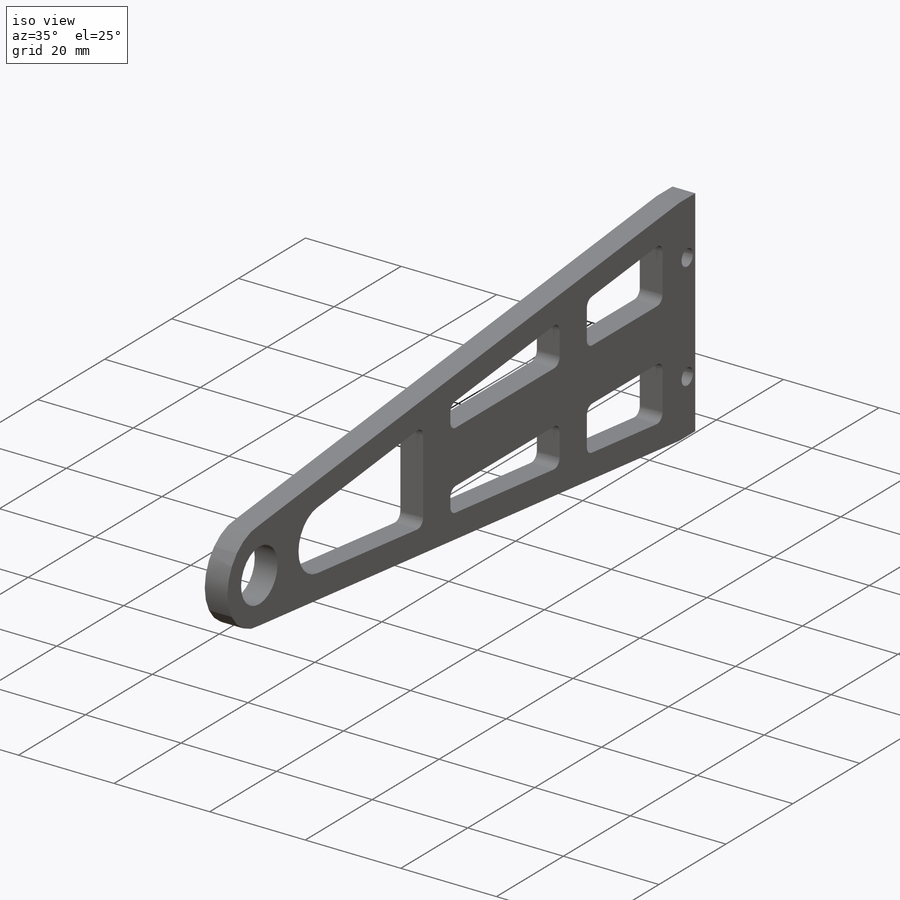
[diagram: iso view]
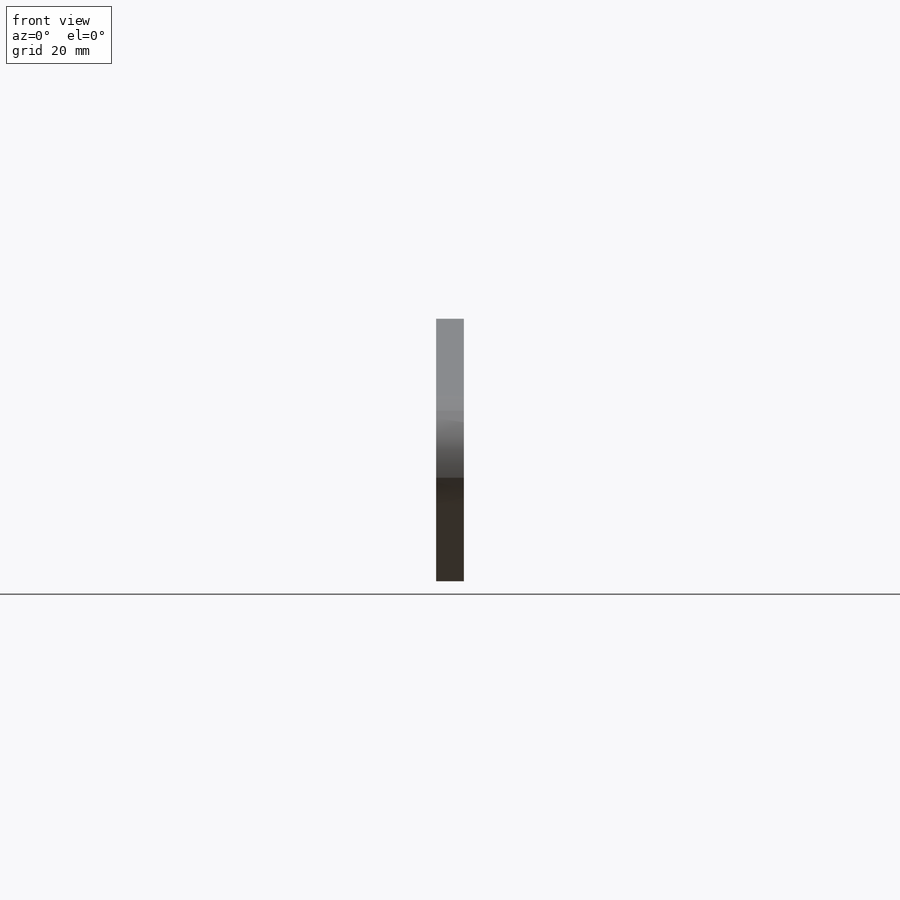
[diagram: front view]
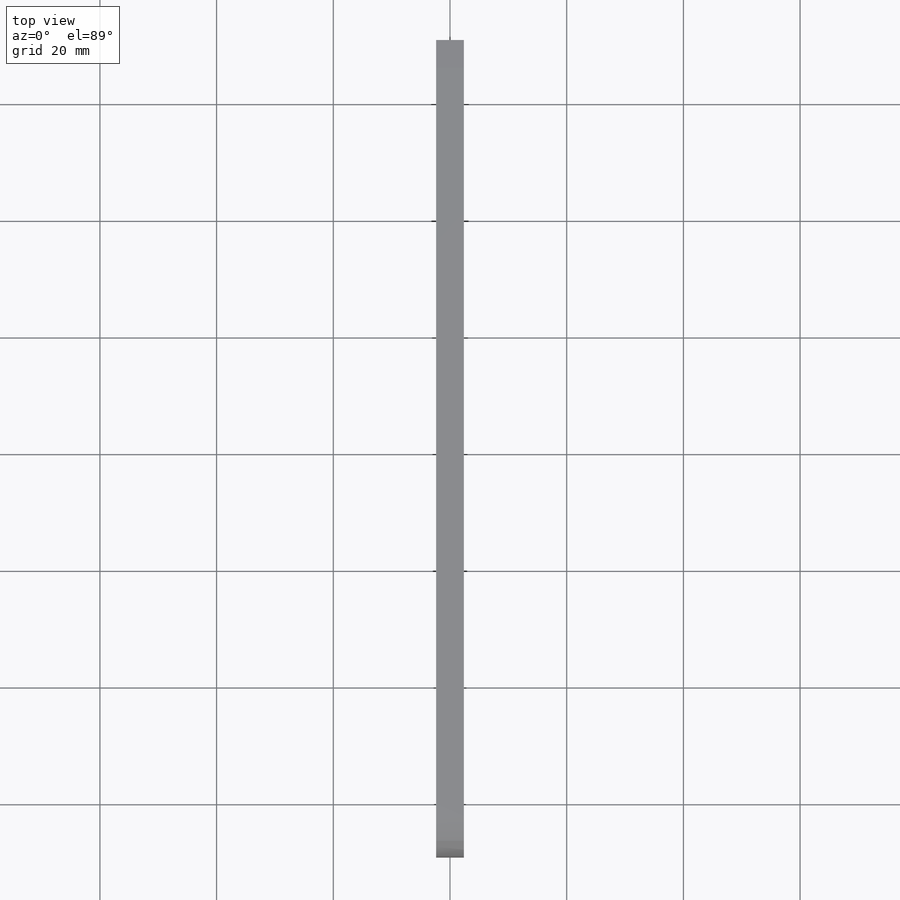
[diagram: top view]
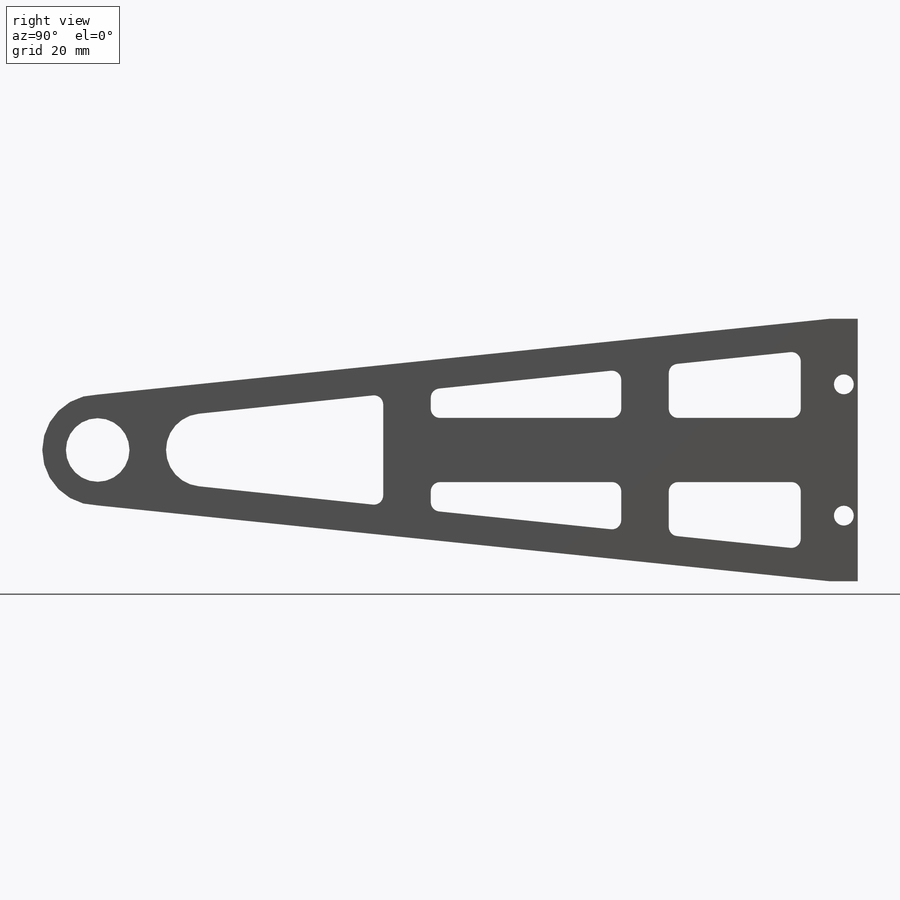
[diagram: right view]
SOLIDWORKS PART (.sldprt)
format: sldprt  version: not decoded by parser v0  size: 315,392 bytes
history: native  units: mm
features: sketch x3, material x1, extrude x1, hole x1 (+13 scaffold rows collapsed)
feature tree (19):
  scaffold x13  (default folders/planes/origin — collapsed)
  material  "6061-T6 (SS)"
  sketch  "Sketch1"  dims[c1.D1=1.5875mm c1.D2=1.5875mm c1.D7=5.496mm c2.D1=11.25mm c2.D2=11.25mm c2.D3=45.0mm c3.D1=32.625mm c3.D2=32.625mm c4.D1=16.3125mm c4.D2=16.3125mm c5.D1=~8.16825mm c5.D2=~8.16825mm c6.D1=10.0mm c6.D3=4.763mm c6.D4=130.5mm c6.D5=45.0491mm c7.D4=130.263mm c7.D5=139.763mm c7.D6=45.0mm]
  extrude  "Boss-Extrude1"  Depth=4.763mm
  hole  "M3 Clearance Hole1"  Diameter=3.2mm Depth=4.763mm
  sketch  "Sketch4"  dims[c1.D1=11.25mm c1.D2=11.25mm c2.D1=11.25mm c2.D2=11.25mm]
  sketch  "Sketch3"  dims[hole-wizard template sketch: 61 standard entries collapsed; hole parameters above]
decode coverage: 5 of 5 modeling features carry decoded parameters
note: ~ marks probable driven/reference dimensions
note: suppression state not decoded; provenance and decode notes live in map.json
